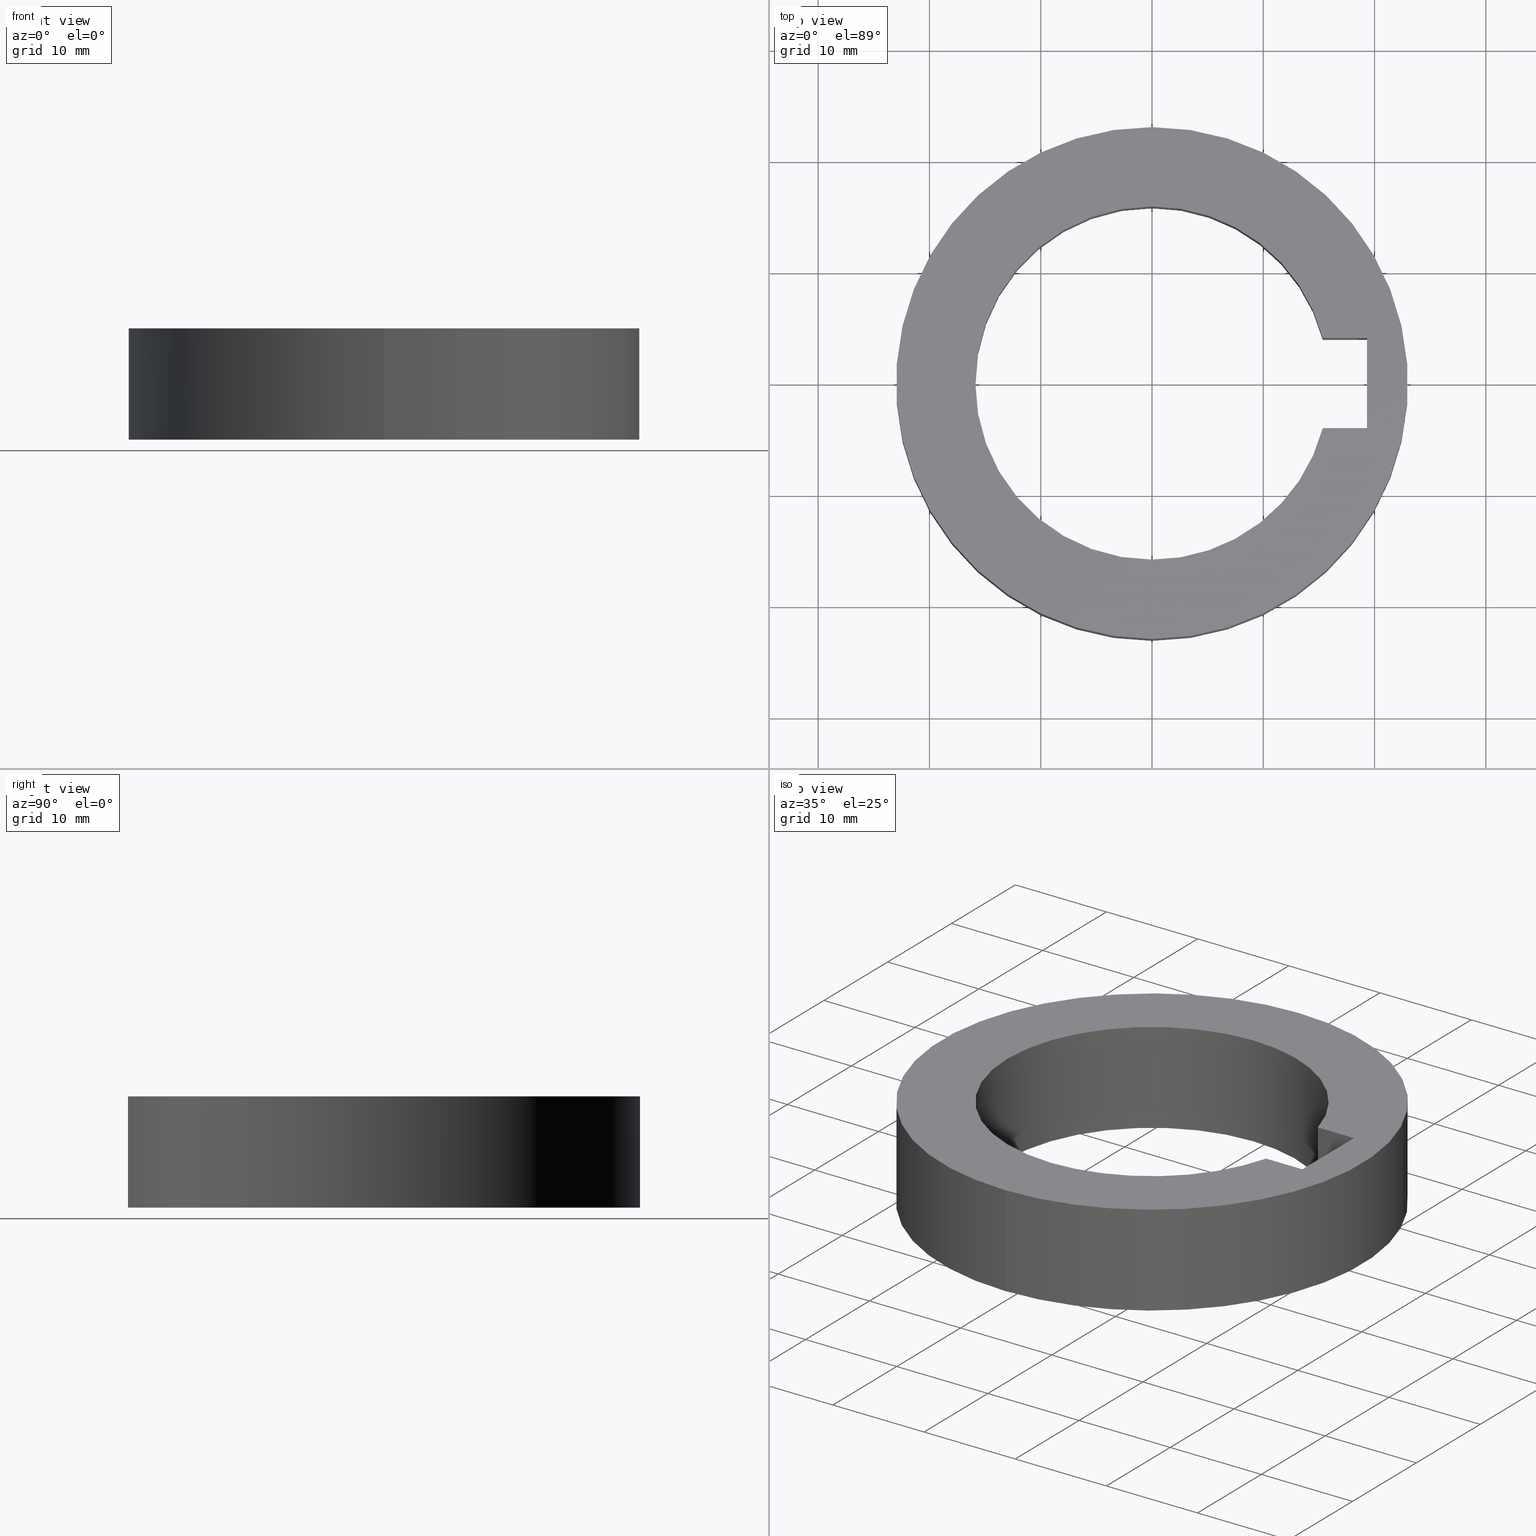
[diagram: canonical four-view strip — front | top / right | iso, engineering-drawing reading convention]
A machine part, canonical four-view strip (front | top / right | iso — engineering-drawing reading convention). The complete STEP part file that produces these views, byte-faithful:
ISO-10303-21;
HEADER;
FILE_DESCRIPTION((''),'2;1');
FILE_NAME('SC3175C_10','2018-09-05T',('ykawabe'),(''),
'CREO PARAMETRIC BY PTC INC, 2016380','CREO PARAMETRIC BY PTC INC, 2016380','');
FILE_SCHEMA(('AUTOMOTIVE_DESIGN { 1 0 10303 214 1 1 1 1 }'));
ENDSEC;
DATA;
#17=DIRECTION('',(0.E0,0.E0,-1.E0));
#18=VECTOR('',#17,1.E1);
#19=CARTESIAN_POINT('',(1.534969462237E1,4.05E0,0.E0));
#20=LINE('',#19,#18);
#21=DRAUGHTING_PRE_DEFINED_CURVE_FONT('continuous');
#22=CURVE_STYLE('',#21,POSITIVE_LENGTH_MEASURE(2.E-2),#4);
#23=PRESENTATION_STYLE_ASSIGNMENT((#22));
#24=STYLED_ITEM('',(#23),#20);
#25=DIRECTION('',(0.E0,0.E0,1.E0));
#26=VECTOR('',#25,1.E1);
#27=CARTESIAN_POINT('',(1.534969462237E1,-4.05E0,-1.E1));
#28=LINE('',#27,#26);
#29=CURVE_STYLE('',#21,POSITIVE_LENGTH_MEASURE(2.E-2),#4);
#30=PRESENTATION_STYLE_ASSIGNMENT((#29));
#31=STYLED_ITEM('',(#30),#28);
#32=CARTESIAN_POINT('',(0.E0,1.230770033143E-14,0.E0));
#33=DIRECTION('',(0.E0,0.E0,-1.E0));
#34=DIRECTION('',(0.E0,-1.E0,0.E0));
#35=AXIS2_PLACEMENT_3D('',#32,#33,#34);
#37=CURVE_STYLE('',#21,POSITIVE_LENGTH_MEASURE(2.E-2),#4);
#38=PRESENTATION_STYLE_ASSIGNMENT((#37));
#39=STYLED_ITEM('',(#38),#36);
#40=CARTESIAN_POINT('',(0.E0,1.230770033143E-14,0.E0));
#41=DIRECTION('',(0.E0,0.E0,-1.E0));
#42=DIRECTION('',(0.E0,1.E0,0.E0));
#43=AXIS2_PLACEMENT_3D('',#40,#41,#42);
#45=CURVE_STYLE('',#21,POSITIVE_LENGTH_MEASURE(2.E-2),#4);
#46=PRESENTATION_STYLE_ASSIGNMENT((#45));
#47=STYLED_ITEM('',(#46),#44);
#48=CARTESIAN_POINT('',(0.E0,1.230770033143E-14,0.E0));
#49=DIRECTION('',(0.E0,0.E0,1.E0));
#50=DIRECTION('',(9.669098974721E-1,2.551181102362E-1,0.E0));
#51=AXIS2_PLACEMENT_3D('',#48,#49,#50);
#53=CURVE_STYLE('',#21,POSITIVE_LENGTH_MEASURE(2.E-2),#4);
#54=PRESENTATION_STYLE_ASSIGNMENT((#53));
#55=STYLED_ITEM('',(#54),#52);
#56=CARTESIAN_POINT('',(0.E0,1.230770033143E-14,0.E0));
#57=DIRECTION('',(0.E0,0.E0,1.E0));
#58=DIRECTION('',(0.E0,1.E0,0.E0));
#59=AXIS2_PLACEMENT_3D('',#56,#57,#58);
#61=CURVE_STYLE('',#21,POSITIVE_LENGTH_MEASURE(2.E-2),#4);
#62=PRESENTATION_STYLE_ASSIGNMENT((#61));
#63=STYLED_ITEM('',(#62),#60);
#64=CARTESIAN_POINT('',(0.E0,1.230770033143E-14,0.E0));
#65=DIRECTION('',(0.E0,0.E0,1.E0));
#66=DIRECTION('',(0.E0,-1.E0,0.E0));
#67=AXIS2_PLACEMENT_3D('',#64,#65,#66);
#69=CURVE_STYLE('',#21,POSITIVE_LENGTH_MEASURE(2.E-2),#4);
#70=PRESENTATION_STYLE_ASSIGNMENT((#69));
#71=STYLED_ITEM('',(#70),#68);
#72=DIRECTION('',(0.E0,0.E0,-1.E0));
#73=VECTOR('',#72,1.E1);
#74=CARTESIAN_POINT('',(0.E0,-2.3E1,0.E0));
#75=LINE('',#74,#73);
#76=CURVE_STYLE('',#21,POSITIVE_LENGTH_MEASURE(2.E-2),#4);
#77=PRESENTATION_STYLE_ASSIGNMENT((#76));
#78=STYLED_ITEM('',(#77),#75);
#79=DIRECTION('',(0.E0,0.E0,-1.E0));
#80=VECTOR('',#79,1.E1);
#81=CARTESIAN_POINT('',(0.E0,2.3E1,0.E0));
#82=LINE('',#81,#80);
#83=CURVE_STYLE('',#21,POSITIVE_LENGTH_MEASURE(2.E-2),#4);
#84=PRESENTATION_STYLE_ASSIGNMENT((#83));
#85=STYLED_ITEM('',(#84),#82);
#86=CARTESIAN_POINT('',(0.E0,1.230770033143E-14,-1.E1));
#87=DIRECTION('',(0.E0,0.E0,1.E0));
#88=DIRECTION('',(0.E0,-1.E0,0.E0));
#89=AXIS2_PLACEMENT_3D('',#86,#87,#88);
#91=CURVE_STYLE('',#21,POSITIVE_LENGTH_MEASURE(2.E-2),#4);
#92=PRESENTATION_STYLE_ASSIGNMENT((#91));
#93=STYLED_ITEM('',(#92),#90);
#94=CARTESIAN_POINT('',(0.E0,1.230770033143E-14,-1.E1));
#95=DIRECTION('',(0.E0,0.E0,1.E0));
#96=DIRECTION('',(0.E0,1.E0,0.E0));
#97=AXIS2_PLACEMENT_3D('',#94,#95,#96);
#99=CURVE_STYLE('',#21,POSITIVE_LENGTH_MEASURE(2.E-2),#4);
#100=PRESENTATION_STYLE_ASSIGNMENT((#99));
#101=STYLED_ITEM('',(#100),#98);
#102=DIRECTION('',(-1.E0,1.050092552909E-14,0.E0));
#103=VECTOR('',#102,3.975305377630E0);
#104=CARTESIAN_POINT('',(1.9325E1,-4.05E0,-1.E1));
#105=LINE('',#104,#103);
#106=CURVE_STYLE('',#21,POSITIVE_LENGTH_MEASURE(2.E-2),#4);
#107=PRESENTATION_STYLE_ASSIGNMENT((#106));
#108=STYLED_ITEM('',(#107),#105);
#109=CARTESIAN_POINT('',(0.E0,1.230770033143E-14,-1.E1));
#110=DIRECTION('',(0.E0,0.E0,-1.E0));
#111=DIRECTION('',(9.669098974721E-1,-2.551181102362E-1,0.E0));
#112=AXIS2_PLACEMENT_3D('',#109,#110,#111);
#114=CURVE_STYLE('',#21,POSITIVE_LENGTH_MEASURE(2.E-2),#4);
#115=PRESENTATION_STYLE_ASSIGNMENT((#114));
#116=STYLED_ITEM('',(#115),#113);
#117=CARTESIAN_POINT('',(0.E0,1.230770033143E-14,-1.E1));
#118=DIRECTION('',(0.E0,0.E0,-1.E0));
#119=DIRECTION('',(0.E0,-1.E0,0.E0));
#120=AXIS2_PLACEMENT_3D('',#117,#118,#119);
#122=CURVE_STYLE('',#21,POSITIVE_LENGTH_MEASURE(2.E-2),#4);
#123=PRESENTATION_STYLE_ASSIGNMENT((#122));
#124=STYLED_ITEM('',(#123),#121);
#125=CARTESIAN_POINT('',(0.E0,1.230770033143E-14,-1.E1));
#126=DIRECTION('',(0.E0,0.E0,-1.E0));
#127=DIRECTION('',(0.E0,1.E0,0.E0));
#128=AXIS2_PLACEMENT_3D('',#125,#126,#127);
#130=CURVE_STYLE('',#21,POSITIVE_LENGTH_MEASURE(2.E-2),#4);
#131=PRESENTATION_STYLE_ASSIGNMENT((#130));
#132=STYLED_ITEM('',(#131),#129);
#133=DIRECTION('',(1.E0,0.E0,0.E0));
#134=VECTOR('',#133,3.975305377630E0);
#135=CARTESIAN_POINT('',(1.534969462237E1,4.05E0,-1.E1));
#136=LINE('',#135,#134);
#137=CURVE_STYLE('',#21,POSITIVE_LENGTH_MEASURE(2.E-2),#4);
#138=PRESENTATION_STYLE_ASSIGNMENT((#137));
#139=STYLED_ITEM('',(#138),#136);
#140=DIRECTION('',(0.E0,-1.E0,0.E0));
#141=VECTOR('',#140,8.1E0);
#142=CARTESIAN_POINT('',(1.9325E1,4.05E0,-1.E1));
#143=LINE('',#142,#141);
#144=CURVE_STYLE('',#21,POSITIVE_LENGTH_MEASURE(2.E-2),#4);
#145=PRESENTATION_STYLE_ASSIGNMENT((#144));
#146=STYLED_ITEM('',(#145),#143);
#147=DIRECTION('',(0.E0,0.E0,1.E0));
#148=VECTOR('',#147,1.E1);
#149=CARTESIAN_POINT('',(1.9325E1,-4.05E0,-1.E1));
#150=LINE('',#149,#148);
#151=CURVE_STYLE('',#21,POSITIVE_LENGTH_MEASURE(2.E-2),#4);
#152=PRESENTATION_STYLE_ASSIGNMENT((#151));
#153=STYLED_ITEM('',(#152),#150);
#154=DIRECTION('',(-1.E0,1.027750158167E-14,0.E0));
#155=VECTOR('',#154,3.975305377630E0);
#156=CARTESIAN_POINT('',(1.9325E1,-4.05E0,0.E0));
#157=LINE('',#156,#155);
#158=CURVE_STYLE('',#21,POSITIVE_LENGTH_MEASURE(2.E-2),#4);
#159=PRESENTATION_STYLE_ASSIGNMENT((#158));
#160=STYLED_ITEM('',(#159),#157);
#161=DIRECTION('',(0.E0,0.E0,1.E0));
#162=VECTOR('',#161,1.E1);
#163=CARTESIAN_POINT('',(1.9325E1,4.05E0,-1.E1));
#164=LINE('',#163,#162);
#165=CURVE_STYLE('',#21,POSITIVE_LENGTH_MEASURE(2.E-2),#4);
#166=PRESENTATION_STYLE_ASSIGNMENT((#165));
#167=STYLED_ITEM('',(#166),#164);
#168=DIRECTION('',(0.E0,-1.E0,0.E0));
#169=VECTOR('',#168,8.1E0);
#170=CARTESIAN_POINT('',(1.9325E1,4.05E0,0.E0));
#171=LINE('',#170,#169);
#172=CURVE_STYLE('',#21,POSITIVE_LENGTH_MEASURE(2.E-2),#4);
#173=PRESENTATION_STYLE_ASSIGNMENT((#172));
#174=STYLED_ITEM('',(#173),#171);
#175=DIRECTION('',(1.E0,0.E0,0.E0));
#176=VECTOR('',#175,3.975305377630E0);
#177=CARTESIAN_POINT('',(1.534969462237E1,4.05E0,0.E0));
#178=LINE('',#177,#176);
#179=CURVE_STYLE('',#21,POSITIVE_LENGTH_MEASURE(2.E-2),#4);
#180=PRESENTATION_STYLE_ASSIGNMENT((#179));
#181=STYLED_ITEM('',(#180),#178);
#182=CARTESIAN_POINT('',(0.E0,-1.5875E1,0.E0));
#183=CARTESIAN_POINT('',(1.534969462237E1,-4.05E0,0.E0));
#184=VERTEX_POINT('',#182);
#185=VERTEX_POINT('',#183);
#186=CARTESIAN_POINT('',(0.E0,1.5875E1,0.E0));
#187=VERTEX_POINT('',#186);
#188=CARTESIAN_POINT('',(1.534969462237E1,4.05E0,0.E0));
#189=VERTEX_POINT('',#188);
#190=CARTESIAN_POINT('',(1.534969462237E1,4.05E0,-1.E1));
#191=VERTEX_POINT('',#190);
#192=CARTESIAN_POINT('',(0.E0,1.5875E1,-1.E1));
#193=VERTEX_POINT('',#192);
#194=CARTESIAN_POINT('',(0.E0,-1.5875E1,-1.E1));
#195=VERTEX_POINT('',#194);
#196=CARTESIAN_POINT('',(1.534969462237E1,-4.05E0,-1.E1));
#197=VERTEX_POINT('',#196);
#198=CARTESIAN_POINT('',(0.E0,-2.3E1,0.E0));
#199=CARTESIAN_POINT('',(0.E0,2.3E1,0.E0));
#200=VERTEX_POINT('',#198);
#201=VERTEX_POINT('',#199);
#202=CARTESIAN_POINT('',(1.9325E1,-4.05E0,0.E0));
#203=VERTEX_POINT('',#202);
#204=CARTESIAN_POINT('',(1.9325E1,4.05E0,0.E0));
#205=VERTEX_POINT('',#204);
#206=CARTESIAN_POINT('',(0.E0,2.3E1,-1.E1));
#207=VERTEX_POINT('',#206);
#208=CARTESIAN_POINT('',(0.E0,-2.3E1,-1.E1));
#209=VERTEX_POINT('',#208);
#210=CARTESIAN_POINT('',(1.9325E1,-4.05E0,-1.E1));
#211=VERTEX_POINT('',#210);
#212=CARTESIAN_POINT('',(1.9325E1,4.05E0,-1.E1));
#213=VERTEX_POINT('',#212);
#214=CARTESIAN_POINT('',(0.E0,1.230770033143E-14,5.E-1));
#215=DIRECTION('',(0.E0,0.E0,-1.E0));
#216=DIRECTION('',(0.E0,-1.E0,0.E0));
#217=AXIS2_PLACEMENT_3D('',#214,#215,#216);
#218=CYLINDRICAL_SURFACE('',#217,1.5875E1);
#220=ORIENTED_EDGE('',*,*,#219,.F.);
#222=ORIENTED_EDGE('',*,*,#221,.F.);
#224=ORIENTED_EDGE('',*,*,#223,.F.);
#226=ORIENTED_EDGE('',*,*,#225,.T.);
#228=ORIENTED_EDGE('',*,*,#227,.F.);
#230=ORIENTED_EDGE('',*,*,#229,.F.);
#232=ORIENTED_EDGE('',*,*,#231,.F.);
#234=ORIENTED_EDGE('',*,*,#233,.T.);
#235=EDGE_LOOP('',(#220,#222,#224,#226,#228,#230,#232,#234));
#236=FACE_OUTER_BOUND('',#235,.F.);
#238=CARTESIAN_POINT('',(0.E0,1.224646799147E-14,0.E0));
#239=DIRECTION('',(0.E0,0.E0,-1.E0));
#240=DIRECTION('',(0.E0,-1.E0,0.E0));
#241=AXIS2_PLACEMENT_3D('',#238,#239,#240);
#242=PLANE('',#241);
#244=ORIENTED_EDGE('',*,*,#243,.T.);
#246=ORIENTED_EDGE('',*,*,#245,.T.);
#247=EDGE_LOOP('',(#244,#246));
#248=FACE_OUTER_BOUND('',#247,.F.);
#250=ORIENTED_EDGE('',*,*,#249,.F.);
#252=ORIENTED_EDGE('',*,*,#251,.F.);
#254=ORIENTED_EDGE('',*,*,#253,.F.);
#255=ORIENTED_EDGE('',*,*,#223,.T.);
#256=ORIENTED_EDGE('',*,*,#221,.T.);
#257=ORIENTED_EDGE('',*,*,#219,.T.);
#258=EDGE_LOOP('',(#250,#252,#254,#255,#256,#257));
#259=FACE_BOUND('',#258,.F.);
#261=CARTESIAN_POINT('',(0.E0,1.230770033143E-14,5.E-1));
#262=DIRECTION('',(0.E0,0.E0,-1.E0));
#263=DIRECTION('',(0.E0,-1.E0,0.E0));
#264=AXIS2_PLACEMENT_3D('',#261,#262,#263);
#265=CYLINDRICAL_SURFACE('',#264,2.3E1);
#267=ORIENTED_EDGE('',*,*,#266,.F.);
#268=ORIENTED_EDGE('',*,*,#243,.F.);
#270=ORIENTED_EDGE('',*,*,#269,.T.);
#272=ORIENTED_EDGE('',*,*,#271,.F.);
#273=EDGE_LOOP('',(#267,#268,#270,#272));
#274=FACE_OUTER_BOUND('',#273,.F.);
#276=CARTESIAN_POINT('',(0.E0,1.230770033143E-14,5.E-1));
#277=DIRECTION('',(0.E0,0.E0,-1.E0));
#278=DIRECTION('',(0.E0,-1.E0,0.E0));
#279=AXIS2_PLACEMENT_3D('',#276,#277,#278);
#280=CYLINDRICAL_SURFACE('',#279,2.3E1);
#281=ORIENTED_EDGE('',*,*,#266,.T.);
#283=ORIENTED_EDGE('',*,*,#282,.F.);
#284=ORIENTED_EDGE('',*,*,#269,.F.);
#285=ORIENTED_EDGE('',*,*,#245,.F.);
#286=EDGE_LOOP('',(#281,#283,#284,#285));
#287=FACE_OUTER_BOUND('',#286,.F.);
#289=CARTESIAN_POINT('',(0.E0,1.102182119233E-14,-1.E1));
#290=DIRECTION('',(0.E0,0.E0,-1.E0));
#291=DIRECTION('',(0.E0,-1.E0,0.E0));
#292=AXIS2_PLACEMENT_3D('',#289,#290,#291);
#293=PLANE('',#292);
#294=ORIENTED_EDGE('',*,*,#282,.T.);
#295=ORIENTED_EDGE('',*,*,#271,.T.);
#296=EDGE_LOOP('',(#294,#295));
#297=FACE_OUTER_BOUND('',#296,.F.);
#299=ORIENTED_EDGE('',*,*,#298,.T.);
#300=ORIENTED_EDGE('',*,*,#231,.T.);
#301=ORIENTED_EDGE('',*,*,#229,.T.);
#302=ORIENTED_EDGE('',*,*,#227,.T.);
#304=ORIENTED_EDGE('',*,*,#303,.T.);
#306=ORIENTED_EDGE('',*,*,#305,.T.);
#307=EDGE_LOOP('',(#299,#300,#301,#302,#304,#306));
#308=FACE_BOUND('',#307,.F.);
#310=CARTESIAN_POINT('',(1.1225E1,-4.05E0,0.E0));
#311=DIRECTION('',(0.E0,-1.E0,0.E0));
#312=DIRECTION('',(1.E0,0.E0,0.E0));
#313=AXIS2_PLACEMENT_3D('',#310,#311,#312);
#314=PLANE('',#313);
#315=ORIENTED_EDGE('',*,*,#233,.F.);
#316=ORIENTED_EDGE('',*,*,#298,.F.);
#318=ORIENTED_EDGE('',*,*,#317,.T.);
#319=ORIENTED_EDGE('',*,*,#249,.T.);
#320=EDGE_LOOP('',(#315,#316,#318,#319));
#321=FACE_OUTER_BOUND('',#320,.F.);
#323=CARTESIAN_POINT('',(1.9325E1,-4.05E0,0.E0));
#324=DIRECTION('',(1.E0,0.E0,0.E0));
#325=DIRECTION('',(0.E0,1.E0,0.E0));
#326=AXIS2_PLACEMENT_3D('',#323,#324,#325);
#327=PLANE('',#326);
#328=ORIENTED_EDGE('',*,*,#305,.F.);
#330=ORIENTED_EDGE('',*,*,#329,.T.);
#331=ORIENTED_EDGE('',*,*,#251,.T.);
#332=ORIENTED_EDGE('',*,*,#317,.F.);
#333=EDGE_LOOP('',(#328,#330,#331,#332));
#334=FACE_OUTER_BOUND('',#333,.F.);
#336=CARTESIAN_POINT('',(1.9325E1,4.05E0,0.E0));
#337=DIRECTION('',(0.E0,1.E0,0.E0));
#338=DIRECTION('',(-1.E0,0.E0,0.E0));
#339=AXIS2_PLACEMENT_3D('',#336,#337,#338);
#340=PLANE('',#339);
#341=ORIENTED_EDGE('',*,*,#225,.F.);
#342=ORIENTED_EDGE('',*,*,#253,.T.);
#343=ORIENTED_EDGE('',*,*,#329,.F.);
#344=ORIENTED_EDGE('',*,*,#303,.F.);
#345=EDGE_LOOP('',(#341,#342,#343,#344));
#346=FACE_OUTER_BOUND('',#345,.F.);
#348=CLOSED_SHELL('',(#237,#260,#275,#288,#309,#322,#335,#347));
#349=MANIFOLD_SOLID_BREP('',#348);
#350=FILL_AREA_STYLE_COLOUR('',#4);
#351=FILL_AREA_STYLE('',(#350));
#352=SURFACE_STYLE_FILL_AREA(#351);
#353=SURFACE_SIDE_STYLE('',(#352));
#354=SURFACE_STYLE_USAGE(.BOTH.,#353);
#355=PRESENTATION_STYLE_ASSIGNMENT((#354));
#16=STYLED_ITEM('',(#355),#349);
#356=CARTESIAN_POINT('',(0.E0,0.E0,0.E0));
#357=DIRECTION('',(0.E0,0.E0,1.E0));
#358=DIRECTION('',(1.E0,0.E0,0.E0));
#359=AXIS2_PLACEMENT_3D('SC3175C_10',#356,#357,#358);
#360=CURVE_STYLE('',#21,POSITIVE_LENGTH_MEASURE(2.E-2),#6);
#361=PRESENTATION_STYLE_ASSIGNMENT((#360));
#362=STYLED_ITEM('',(#361),#359);
#363=CARTESIAN_POINT('',(0.E0,0.E0,-1.E1));
#364=DIRECTION('',(0.E0,0.E0,1.E0));
#365=DIRECTION('',(1.E0,0.E0,0.E0));
#366=AXIS2_PLACEMENT_3D('CSW',#363,#364,#365);
#367=CURVE_STYLE('',#21,POSITIVE_LENGTH_MEASURE(2.E-2),#4);
#368=PRESENTATION_STYLE_ASSIGNMENT((#367));
#369=STYLED_ITEM('',(#368),#366);
#370=CARTESIAN_POINT('',(0.E0,0.E0,0.E0));
#371=DIRECTION('',(0.E0,0.E0,1.E0));
#372=DIRECTION('',(1.E0,0.E0,0.E0));
#373=AXIS2_PLACEMENT_3D('MCS',#370,#371,#372);
#374=CURVE_STYLE('',#21,POSITIVE_LENGTH_MEASURE(2.E-2),#4);
#375=PRESENTATION_STYLE_ASSIGNMENT((#374));
#376=STYLED_ITEM('',(#375),#373);
#377=CARTESIAN_POINT('',(0.E0,0.E0,0.E0));
#378=DIRECTION('',(0.E0,0.E0,1.E0));
#379=DIRECTION('',(1.E0,0.E0,0.E0));
#380=AXIS2_PLACEMENT_3D('PCS',#377,#378,#379);
#381=CURVE_STYLE('',#21,POSITIVE_LENGTH_MEASURE(2.E-2),#4);
#382=PRESENTATION_STYLE_ASSIGNMENT((#381));
#383=STYLED_ITEM('',(#382),#380);
#386=PLANE_ANGLE_MEASURE_WITH_UNIT(PLANE_ANGLE_MEASURE(1.745329251994E-2),#385);
#387=(CONVERSION_BASED_UNIT('DEGREE',#386)NAMED_UNIT(*)PLANE_ANGLE_UNIT());
#389=UNCERTAINTY_MEASURE_WITH_UNIT(LENGTH_MEASURE(6.583726887563E-3),#384,
'distance_accuracy_value',
'Maximum model space distance between geometric entities at asserted connectivities');
#393=CARTESIAN_POINT('',(0.E0,0.E0,0.E0));
#394=DIRECTION('',(0.E0,0.E0,1.E0));
#395=DIRECTION('',(1.E0,0.E0,0.E0));
#398=SHAPE_REPRESENTATION_RELATIONSHIP('','',#397,#391);
#399=CONSTRUCTIVE_GEOMETRY_REPRESENTATION_RELATIONSHIP('','',#397,#392);
#400=MECHANICAL_DESIGN_GEOMETRIC_PRESENTATION_REPRESENTATION('',(#24,#31,#39,
#47,#55,#63,#71,#78,#85,#93,#101,#108,#116,#124,#132,#139,#146,#153,#160,#167,
#174,#181,#16,#362,#369,#376,#383),#390);
#401=APPLICATION_CONTEXT('automotive_design');
#402=APPLICATION_PROTOCOL_DEFINITION('international standard',
'automotive_design',2001,#401);
#403=PRODUCT_DEFINITION_CONTEXT('part definition',#401,'design');
#404=PRODUCT_CONTEXT('',#401,'mechanical');
#405=PRODUCT('SC3175C_10','SC3175C_10','NOT SPECIFIED',(#404));
#406=PRODUCT_DEFINITION_FORMATION('1','LAST_VERSION',#405);
#414=DERIVED_UNIT_ELEMENT(#413,2.E0);
#415=DERIVED_UNIT((#414));
#416=MEASURE_REPRESENTATION_ITEM('surface area measure',AREA_MEASURE(
4.202825516648E3),#415);
#421=DERIVED_UNIT_ELEMENT(#420,3.E0);
#422=DERIVED_UNIT((#421));
#423=MEASURE_REPRESENTATION_ITEM('volume measure',VOLUME_MEASURE(
8.408182747312E3),#422);
#427=CARTESIAN_POINT('centre point',(-6.112799836898E-1,-1.653327625716E-8,
-5.E0));
#432=DERIVED_UNIT_ELEMENT(#431,2.E0);
#433=DERIVED_UNIT((#432));
#434=MEASURE_REPRESENTATION_ITEM('surface area measure',AREA_MEASURE(
4.202825516648E3),#433);
#439=DERIVED_UNIT_ELEMENT(#438,3.E0);
#440=DERIVED_UNIT((#439));
#441=MEASURE_REPRESENTATION_ITEM('volume measure',VOLUME_MEASURE(
8.408182747312E3),#440);
#445=CARTESIAN_POINT('centre point',(-6.112799836898E-1,-1.653327625716E-8,
-5.E0));
#450=PRODUCT_RELATED_PRODUCT_CATEGORY('part','',(#405));
#452=GENERAL_PROPERTY('','DESCRIPTION','user defined attribute');
#453=GENERAL_PROPERTY_ASSOCIATION('user defined attribute','',#452,#451);
#454=DESCRIPTIVE_REPRESENTATION_ITEM('DESCRIPTION','');
#458=GENERAL_PROPERTY('','MODELED_BY','user defined attribute');
#459=GENERAL_PROPERTY_ASSOCIATION('user defined attribute','',#458,#457);
#460=DESCRIPTIVE_REPRESENTATION_ITEM('MODELED_BY','');
#464=GENERAL_PROPERTY('','DXF_NAME','user defined attribute');
#465=GENERAL_PROPERTY_ASSOCIATION('user defined attribute','',#464,#463);
#466=DESCRIPTIVE_REPRESENTATION_ITEM('DXF_NAME','SC254C_5');
#470=GENERAL_PROPERTY('','CCWS','user defined attribute');
#471=GENERAL_PROPERTY_ASSOCIATION('user defined attribute','',#470,#469);
#472=DESCRIPTIVE_REPRESENTATION_ITEM('CCWS','');
#476=GENERAL_PROPERTY('','DIM_A','user defined attribute');
#477=GENERAL_PROPERTY_ASSOCIATION('user defined attribute','',#476,#475);
#478=VALUE_REPRESENTATION_ITEM('DIM_A',COUNT_MEASURE(46));
#481=DESCRIPTIVE_REPRESENTATION_ITEM('attribute description','Integer');
#486=GENERAL_PROPERTY('','DIM_C','user defined attribute');
#487=GENERAL_PROPERTY_ASSOCIATION('user defined attribute','',#486,#485);
#488=VALUE_REPRESENTATION_ITEM('DIM_C',COUNT_MEASURE(10));
#491=DESCRIPTIVE_REPRESENTATION_ITEM('attribute description','Integer');
#496=GENERAL_PROPERTY('','DIM_B','user defined attribute');
#497=GENERAL_PROPERTY_ASSOCIATION('user defined attribute','',#496,#495);
#498=VALUE_REPRESENTATION_ITEM('DIM_B',NUMERIC_MEASURE(3.175E1));
#501=DESCRIPTIVE_REPRESENTATION_ITEM('attribute description','Real Number');
#506=GENERAL_PROPERTY('','DIM_D','user defined attribute');
#507=GENERAL_PROPERTY_ASSOCIATION('user defined attribute','',#506,#505);
#508=VALUE_REPRESENTATION_ITEM('DIM_D',NUMERIC_MEASURE(1.9325E1));
#511=DESCRIPTIVE_REPRESENTATION_ITEM('attribute description','Real Number');
#516=GENERAL_PROPERTY('','DIM_E','user defined attribute');
#517=GENERAL_PROPERTY_ASSOCIATION('user defined attribute','',#516,#515);
#518=VALUE_REPRESENTATION_ITEM('DIM_E',NUMERIC_MEASURE(8.1E0));
#521=DESCRIPTIVE_REPRESENTATION_ITEM('attribute description','Real Number');
#1=DRAUGHTING_PRE_DEFINED_COLOUR('green');
#2=COLOUR_RGB('',1.1E-2,1.2E-2,1.E0);
#3=COLOUR_RGB('',4.1E-1,2.61589E-1,1.12848E-1);
#4=COLOUR_RGB('',5.019607843137E-1,5.019607843137E-1,5.019607843137E-1);
#5=COLOUR_RGB('',5.04854E-1,1.5455E-2,1.5455E-2);
#6=COLOUR_RGB('',6.E-1,4.E-1,2.E-1);
#7=COLOUR_RGB('',6.40777E-1,6.40777E-1,6.40777E-1);
#8=COLOUR_RGB('',6.69062E-1,6.69903E-1,6.55217E-1);
#9=COLOUR_RGB('',6.952E-1,7.426E-1,7.9E-1);
#10=COLOUR_RGB('',9.21569E-1,7.05882E-1,4.70588E-1);
#11=DRAUGHTING_PRE_DEFINED_COLOUR('red');
#12=DRAUGHTING_PRE_DEFINED_COLOUR('yellow');
#13=COLOUR_RGB('',1.E0,1.E0,5.3E-1);
#14=COLOUR_RGB('',1.E0,1.E0,9.49E-1);
#15=DRAUGHTING_PRE_DEFINED_COLOUR('white');
#36=CIRCLE('',#35,2.3E1);
#44=CIRCLE('',#43,2.3E1);
#52=CIRCLE('',#51,1.5875E1);
#60=CIRCLE('',#59,1.5875E1);
#68=CIRCLE('',#67,1.5875E1);
#90=CIRCLE('',#89,2.3E1);
#98=CIRCLE('',#97,2.3E1);
#113=CIRCLE('',#112,1.5875E1);
#121=CIRCLE('',#120,1.5875E1);
#129=CIRCLE('',#128,1.5875E1);
#219=EDGE_CURVE('',#184,#185,#68,.T.);
#221=EDGE_CURVE('',#187,#184,#60,.T.);
#223=EDGE_CURVE('',#189,#187,#52,.T.);
#225=EDGE_CURVE('',#189,#191,#20,.T.);
#227=EDGE_CURVE('',#193,#191,#129,.T.);
#229=EDGE_CURVE('',#195,#193,#121,.T.);
#231=EDGE_CURVE('',#197,#195,#113,.T.);
#233=EDGE_CURVE('',#197,#185,#28,.T.);
#237=ADVANCED_FACE('',(#236),#218,.F.);
#243=EDGE_CURVE('',#200,#201,#36,.T.);
#245=EDGE_CURVE('',#201,#200,#44,.T.);
#249=EDGE_CURVE('',#203,#185,#157,.T.);
#251=EDGE_CURVE('',#205,#203,#171,.T.);
#253=EDGE_CURVE('',#189,#205,#178,.T.);
#260=ADVANCED_FACE('',(#248,#259),#242,.F.);
#266=EDGE_CURVE('',#201,#207,#82,.T.);
#269=EDGE_CURVE('',#200,#209,#75,.T.);
#271=EDGE_CURVE('',#207,#209,#98,.T.);
#275=ADVANCED_FACE('',(#274),#265,.T.);
#282=EDGE_CURVE('',#209,#207,#90,.T.);
#288=ADVANCED_FACE('',(#287),#280,.T.);
#298=EDGE_CURVE('',#211,#197,#105,.T.);
#303=EDGE_CURVE('',#191,#213,#136,.T.);
#305=EDGE_CURVE('',#213,#211,#143,.T.);
#309=ADVANCED_FACE('',(#297,#308),#293,.T.);
#317=EDGE_CURVE('',#211,#203,#150,.T.);
#322=ADVANCED_FACE('',(#321),#314,.F.);
#329=EDGE_CURVE('',#213,#205,#164,.T.);
#335=ADVANCED_FACE('',(#334),#327,.F.);
#347=ADVANCED_FACE('',(#346),#340,.F.);
#384=(LENGTH_UNIT()NAMED_UNIT(*)SI_UNIT(.MILLI.,.METRE.));
#385=(NAMED_UNIT(*)PLANE_ANGLE_UNIT()SI_UNIT($,.RADIAN.));
#388=(NAMED_UNIT(*)SI_UNIT($,.STERADIAN.)SOLID_ANGLE_UNIT());
#390=(GEOMETRIC_REPRESENTATION_CONTEXT(3)GLOBAL_UNCERTAINTY_ASSIGNED_CONTEXT((
#389))GLOBAL_UNIT_ASSIGNED_CONTEXT((#384,#387,#388))REPRESENTATION_CONTEXT
('ID1','3'));
#391=ADVANCED_BREP_SHAPE_REPRESENTATION('',(#349),#390);
#392=CONSTRUCTIVE_GEOMETRY_REPRESENTATION('supplemental geometry',(#359,#366,
#373,#380),#390);
#396=AXIS2_PLACEMENT_3D('',#393,#394,#395);
#397=SHAPE_REPRESENTATION('',(#396),#390);
#407=PRODUCT_DEFINITION('part definition','',#406,#403);
#408=PRODUCT_DEFINITION_SHAPE('','SHAPE FOR SC3175C_10.',#407);
#409=SHAPE_ASPECT('','solid data associated with SC3175C_10',#408,.F.);
#410=PROPERTY_DEFINITION('',
'shape for solid data with which properties are associated',#409);
#411=SHAPE_REPRESENTATION('',(#349),#390);
#412=SHAPE_DEFINITION_REPRESENTATION(#410,#411);
#413=(LENGTH_UNIT()NAMED_UNIT(*)SI_UNIT(.MILLI.,.METRE.));
#417=PROPERTY_DEFINITION('geometric validation property','area of SC3175C_10',
#409);
#418=REPRESENTATION('surface area',(#416),#390);
#419=PROPERTY_DEFINITION_REPRESENTATION(#417,#418);
#420=(LENGTH_UNIT()NAMED_UNIT(*)SI_UNIT(.MILLI.,.METRE.));
#424=PROPERTY_DEFINITION('geometric validation property','volume of SC3175C_10',
#409);
#425=REPRESENTATION('volume',(#423),#390);
#426=PROPERTY_DEFINITION_REPRESENTATION(#424,#425);
#428=PROPERTY_DEFINITION('geometric validation property',
'centroid of SC3175C_10',#409);
#429=REPRESENTATION('centroid',(#427),#390);
#430=PROPERTY_DEFINITION_REPRESENTATION(#428,#429);
#431=(LENGTH_UNIT()NAMED_UNIT(*)SI_UNIT(.MILLI.,.METRE.));
#435=PROPERTY_DEFINITION('geometric validation property','area of SC3175C_10',
#408);
#436=REPRESENTATION('surface area',(#434),#390);
#437=PROPERTY_DEFINITION_REPRESENTATION(#435,#436);
#438=(LENGTH_UNIT()NAMED_UNIT(*)SI_UNIT(.MILLI.,.METRE.));
#442=PROPERTY_DEFINITION('geometric validation property','volume of SC3175C_10',
#408);
#443=REPRESENTATION('volume',(#441),#390);
#444=PROPERTY_DEFINITION_REPRESENTATION(#442,#443);
#446=PROPERTY_DEFINITION('geometric validation property',
'centroid of SC3175C_10',#408);
#447=REPRESENTATION('centroid',(#445),#390);
#448=PROPERTY_DEFINITION_REPRESENTATION(#446,#447);
#449=SHAPE_DEFINITION_REPRESENTATION(#408,#397);
#451=PROPERTY_DEFINITION('DESCRIPTION','user defined attribute',#407);
#455=REPRESENTATION('',(#454),#390);
#456=PROPERTY_DEFINITION_REPRESENTATION(#451,#455);
#457=PROPERTY_DEFINITION('MODELED_BY','user defined attribute',#407);
#461=REPRESENTATION('',(#460),#390);
#462=PROPERTY_DEFINITION_REPRESENTATION(#457,#461);
#463=PROPERTY_DEFINITION('DXF_NAME','user defined attribute',#407);
#467=REPRESENTATION('',(#466),#390);
#468=PROPERTY_DEFINITION_REPRESENTATION(#463,#467);
#469=PROPERTY_DEFINITION('CCWS','user defined attribute',#407);
#473=REPRESENTATION('',(#472),#390);
#474=PROPERTY_DEFINITION_REPRESENTATION(#469,#473);
#475=PROPERTY_DEFINITION('DIM_A','user defined attribute',#407);
#479=REPRESENTATION('',(#478),#390);
#480=PROPERTY_DEFINITION_REPRESENTATION(#475,#479);
#482=REPRESENTATION('',(#481),#390);
#483=PROPERTY_DEFINITION('attribute type designation','Integer',#476);
#484=PROPERTY_DEFINITION_REPRESENTATION(#483,#482);
#485=PROPERTY_DEFINITION('DIM_C','user defined attribute',#407);
#489=REPRESENTATION('',(#488),#390);
#490=PROPERTY_DEFINITION_REPRESENTATION(#485,#489);
#492=REPRESENTATION('',(#491),#390);
#493=PROPERTY_DEFINITION('attribute type designation','Integer',#486);
#494=PROPERTY_DEFINITION_REPRESENTATION(#493,#492);
#495=PROPERTY_DEFINITION('DIM_B','user defined attribute',#407);
#499=REPRESENTATION('',(#498),#390);
#500=PROPERTY_DEFINITION_REPRESENTATION(#495,#499);
#502=REPRESENTATION('',(#501),#390);
#503=PROPERTY_DEFINITION('attribute type designation','Real Number',#496);
#504=PROPERTY_DEFINITION_REPRESENTATION(#503,#502);
#505=PROPERTY_DEFINITION('DIM_D','user defined attribute',#407);
#509=REPRESENTATION('',(#508),#390);
#510=PROPERTY_DEFINITION_REPRESENTATION(#505,#509);
#512=REPRESENTATION('',(#511),#390);
#513=PROPERTY_DEFINITION('attribute type designation','Real Number',#506);
#514=PROPERTY_DEFINITION_REPRESENTATION(#513,#512);
#515=PROPERTY_DEFINITION('DIM_E','user defined attribute',#407);
#519=REPRESENTATION('',(#518),#390);
#520=PROPERTY_DEFINITION_REPRESENTATION(#515,#519);
#522=REPRESENTATION('',(#521),#390);
#523=PROPERTY_DEFINITION('attribute type designation','Real Number',#516);
#524=PROPERTY_DEFINITION_REPRESENTATION(#523,#522);
ENDSEC;
END-ISO-10303-21;
